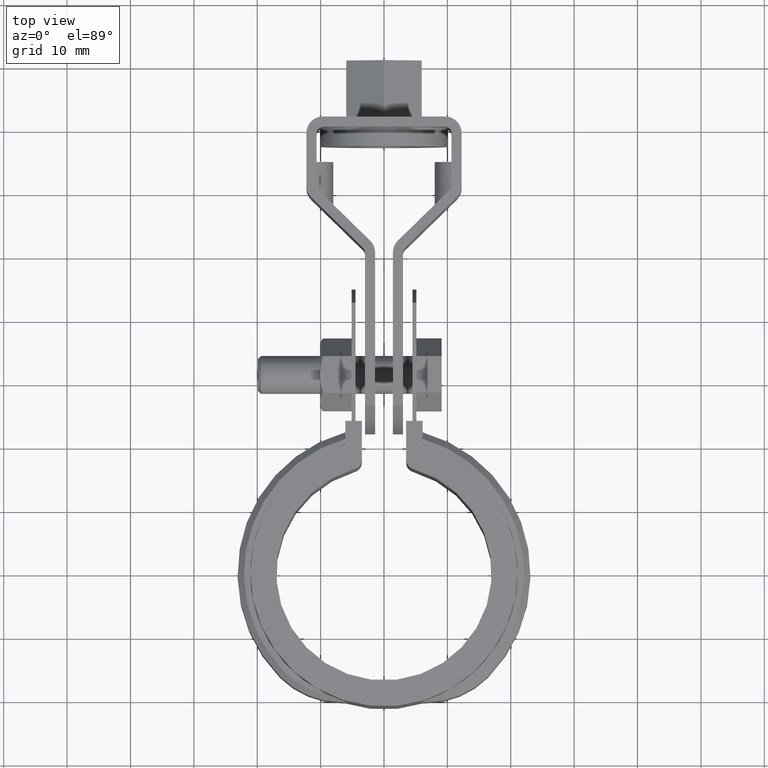
[diagram: clean part render]
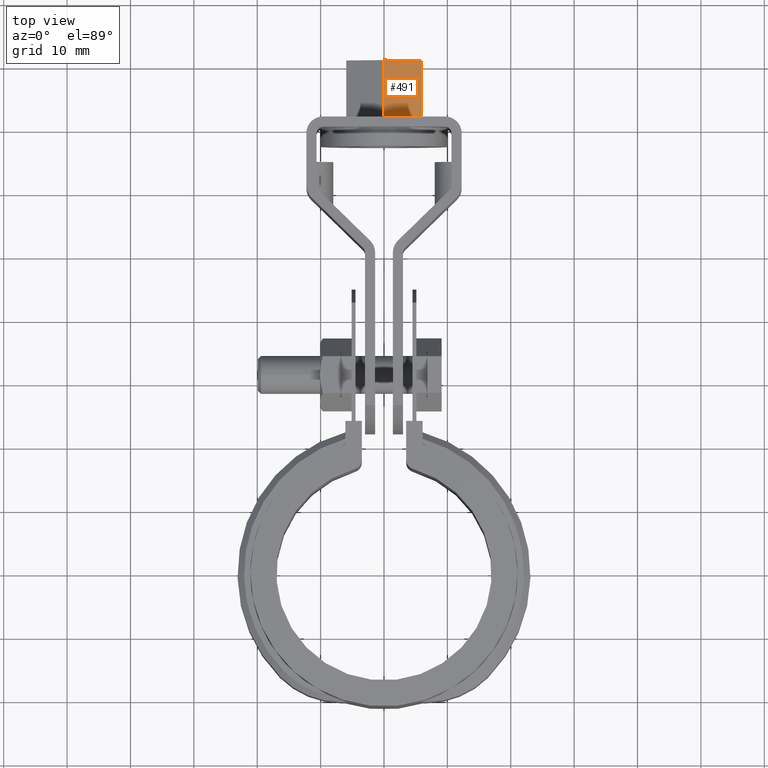
[diagram: same view with one face highlighted and labeled with its STEP entity id]
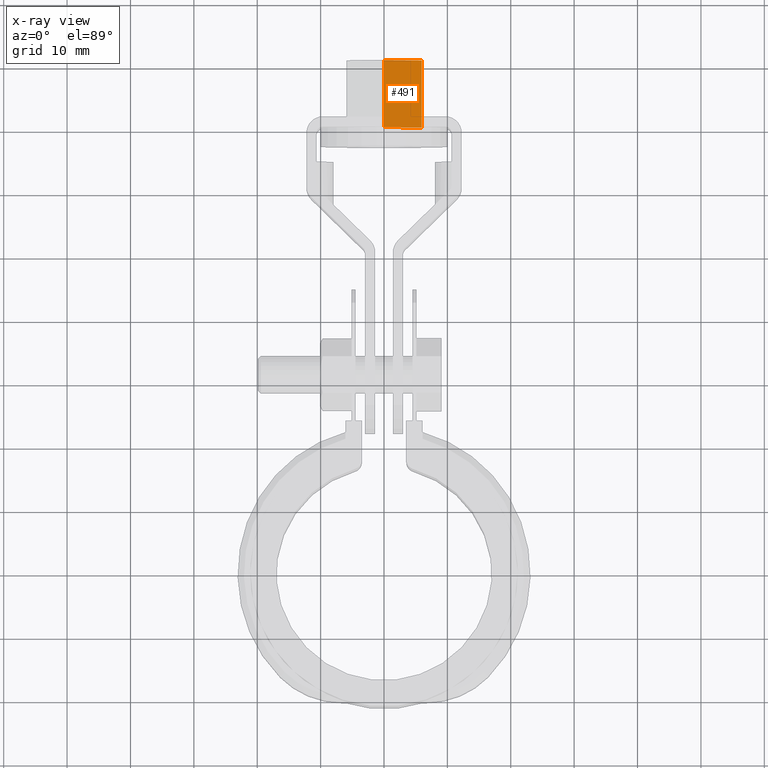
[diagram: x-ray of the same camera — body ghosted, the highlighted face saturated]
A machine part, top view. The second image highlights one B-rep face of the part: STEP entity #491.
The next image is the same camera in x-ray: the body ghosted, the highlighted face saturated — about 0% of this face is hidden behind the body in this view.
In plain terms, the highlighted planar face has unit normal (-0.5, 0, -0.866).
Its self-contained STEP definition (entity closure, byte-faithful):
#491 = ADVANCED_FACE( '', ( #901 ), #902, .F. );
#901 = FACE_OUTER_BOUND( '', #1739, .T. );
#902 = PLANE( '', #1740 );
#1739 = EDGE_LOOP( '', ( #4029, #4030, #4031, #4032 ) );
#1740 = AXIS2_PLACEMENT_3D( '', #4033, #4034, #4035 );
#4029 = ORIENTED_EDGE( '', *, *, #4789, .T. );
#4030 = ORIENTED_EDGE( '', *, *, #4787, .F. );
#4031 = ORIENTED_EDGE( '', *, *, #4805, .F. );
#4032 = ORIENTED_EDGE( '', *, *, #4803, .T. );
#4033 = CARTESIAN_POINT( '', ( 9.93519427220784E-007, 81.0043598848266, -5.62952930454286 ) );
#4034 = DIRECTION( '', ( -0.500000000366226, 1.78605861846633E-008, -0.866025403572998 ) );
#4035 = DIRECTION( '', ( -0.866025403572998, -2.36444923019715E-009, 0.500000000366226 ) );
#4787 = EDGE_CURVE( '', #5700, #5695, #5702, .T. );
#4789 = EDGE_CURVE( '', #5705, #5695, #5706, .T. );
#4803 = EDGE_CURVE( '', #5729, #5705, #5730, .T. );
#4805 = EDGE_CURVE( '', #5729, #5700, #5732, .T. );
#5695 = VERTEX_POINT( '', #8479 );
#5700 = VERTEX_POINT( '', #8486 );
#5702 = LINE( '', #8489, #8490 );
#5705 = VERTEX_POINT( '', #8493 );
#5706 = LINE( '', #8494, #8495 );
#5729 = VERTEX_POINT( '', #8528 );
#5730 = LINE( '', #8529, #8530 );
#5732 = LINE( '', #8533, #8534 );
#8479 = CARTESIAN_POINT( '', ( 5.95000091911096, 70.4043599010714, -9.06476358522670 ) );
#8486 = CARTESIAN_POINT( '', ( 5.95000099206673, 81.0043599010714, -9.06476340873727 ) );
#8489 = CARTESIAN_POINT( '', ( 5.95000099206673, 81.0043599010714, -9.06476340873727 ) );
#8490 = VECTOR( '', #9402, 1000.00000000000 );
#8493 = CARTESIAN_POINT( '', ( 9.20563649148581E-007, 70.4043598848266, -5.62952948103228 ) );
#8494 = CARTESIAN_POINT( '', ( 9.20563655220114E-007, 70.4043598848266, -5.62952948103228 ) );
#8495 = VECTOR( '', #9406, 1000.00000000000 );
#8528 = CARTESIAN_POINT( '', ( 9.93519421149252E-007, 81.0043598848266, -5.62952930454286 ) );
#8529 = CARTESIAN_POINT( '', ( 9.93519421149252E-007, 81.0043598848266, -5.62952930454286 ) );
#8530 = VECTOR( '', #9426, 1000.00000000000 );
#8533 = CARTESIAN_POINT( '', ( 9.93519427220784E-007, 81.0043598848266, -5.62952930454286 ) );
#8534 = VECTOR( '', #9428, 1000.00000000000 );
#9402 = DIRECTION( '', ( -6.88262000006329E-009, -1.00000000000000, -1.66499459745878E-008 ) );
#9406 = DIRECTION( '', ( 0.866025403572998, 2.36444923019716E-009, -0.500000000366226 ) );
#9426 = DIRECTION( '', ( -6.88262000006329E-009, -1.00000000000000, -1.66499459745878E-008 ) );
#9428 = DIRECTION( '', ( 0.866025403572998, 2.36444923019716E-009, -0.500000000366226 ) );